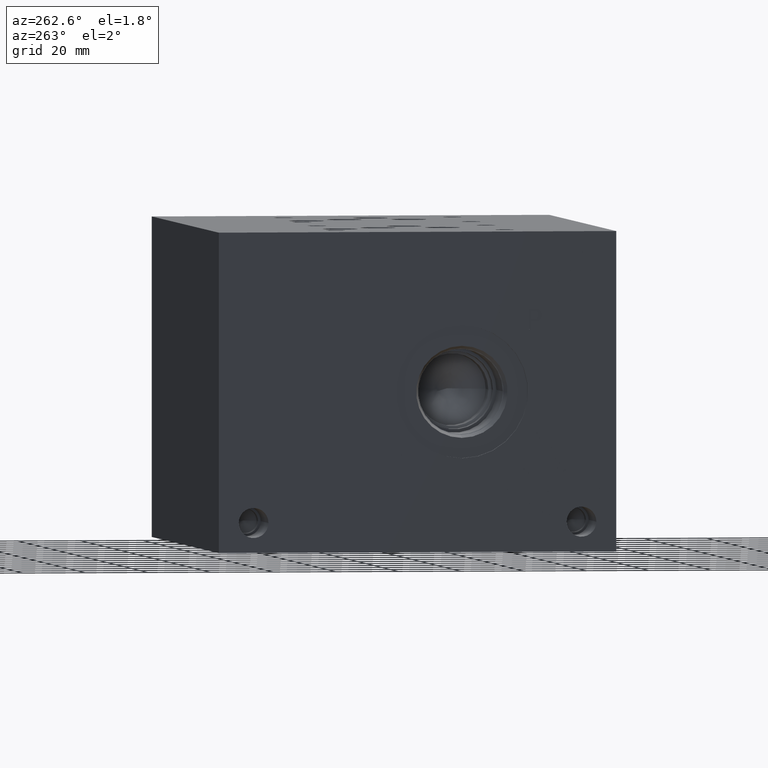
[diagram: clean part render]
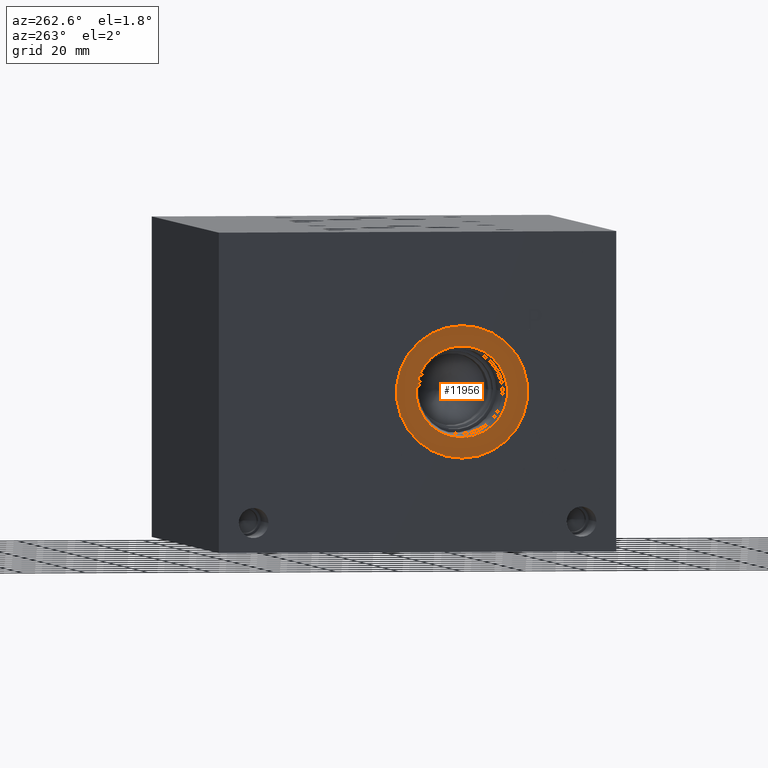
[diagram: same view with one face highlighted and labeled with its STEP entity id]
A machine part, auxiliary view. The second image highlights one B-rep face of the part: STEP entity #11956.
In plain terms, the highlighted planar face has unit normal (1, 0, 0).
Its self-contained STEP definition (entity closure, byte-faithful):
#193=CIRCLE('',#12486,21.0185);
#194=CIRCLE('',#12487,21.0185);
#195=CIRCLE('',#12489,14.5923);
#196=CIRCLE('',#12490,14.5923);
#443=FACE_BOUND('',#2150,.T.);
#1475=FACE_OUTER_BOUND('',#2149,.T.);
#2149=EDGE_LOOP('',(#10022,#10023));
#2150=EDGE_LOOP('',(#10024,#10025));
#5419=VERTEX_POINT('',#20268);
#5420=VERTEX_POINT('',#20270);
#5421=VERTEX_POINT('',#20274);
#5422=VERTEX_POINT('',#20275);
#7016=EDGE_CURVE('',#5419,#5420,#193,.T.);
#7017=EDGE_CURVE('',#5420,#5419,#194,.T.);
#7018=EDGE_CURVE('',#5421,#5422,#195,.T.);
#7019=EDGE_CURVE('',#5422,#5421,#196,.T.);
#10022=ORIENTED_EDGE('',*,*,#7017,.F.);
#10023=ORIENTED_EDGE('',*,*,#7016,.F.);
#10024=ORIENTED_EDGE('',*,*,#7018,.T.);
#10025=ORIENTED_EDGE('',*,*,#7019,.T.);
#10976=PLANE('',#12488);
#11956=ADVANCED_FACE('',(#1475,#443),#10976,.F.);
#12486=AXIS2_PLACEMENT_3D('',#20271,#14577,#14578);
#12487=AXIS2_PLACEMENT_3D('',#20272,#14579,#14580);
#12488=AXIS2_PLACEMENT_3D('',#20273,#14581,#14582);
#12489=AXIS2_PLACEMENT_3D('',#20276,#14583,#14584);
#12490=AXIS2_PLACEMENT_3D('',#20277,#14585,#14586);
#14577=DIRECTION('center_axis',(1.,0.,0.));
#14578=DIRECTION('ref_axis',(0.,0.,-1.));
#14579=DIRECTION('center_axis',(1.,0.,0.));
#14580=DIRECTION('ref_axis',(0.,0.,-1.));
#14581=DIRECTION('center_axis',(1.,0.,0.));
#14582=DIRECTION('ref_axis',(0.,0.,-1.));
#14583=DIRECTION('center_axis',(1.,0.,0.));
#14584=DIRECTION('ref_axis',(0.,0.,-1.));
#14585=DIRECTION('center_axis',(1.,0.,0.));
#14586=DIRECTION('ref_axis',(0.,0.,-1.));
#20268=CARTESIAN_POINT('',(0.7874,49.2252,29.7815));
#20270=CARTESIAN_POINT('',(0.7874,49.2252,71.8185));
#20271=CARTESIAN_POINT('Origin',(0.7874,49.2252,50.8));
#20272=CARTESIAN_POINT('Origin',(0.7874,49.2252,50.8));
#20273=CARTESIAN_POINT('Origin',(0.7874,49.2252,65.3923));
#20274=CARTESIAN_POINT('',(0.7874,49.2252,65.3923));
#20275=CARTESIAN_POINT('',(0.787399999999998,49.2252,36.2077));
#20276=CARTESIAN_POINT('Origin',(0.7874,49.2252,50.8));
#20277=CARTESIAN_POINT('Origin',(0.7874,49.2252,50.8));